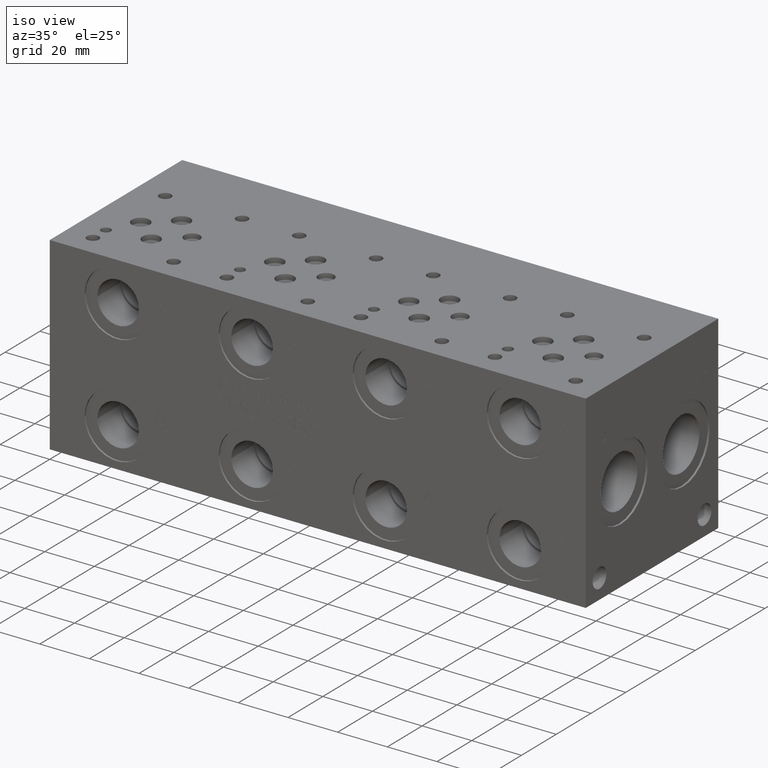
[diagram: clean part render]
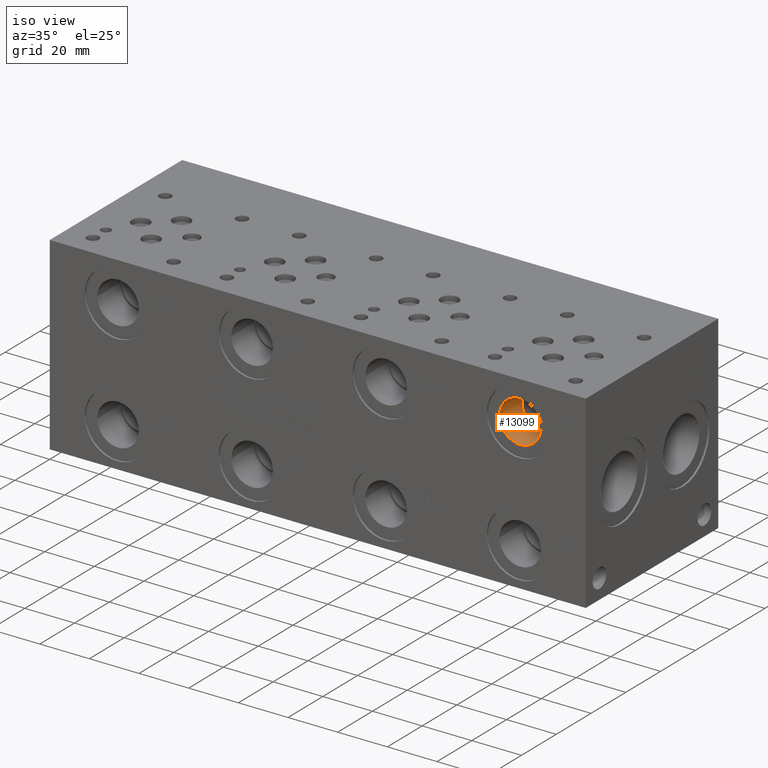
[diagram: same view with one face highlighted and labeled with its STEP entity id]
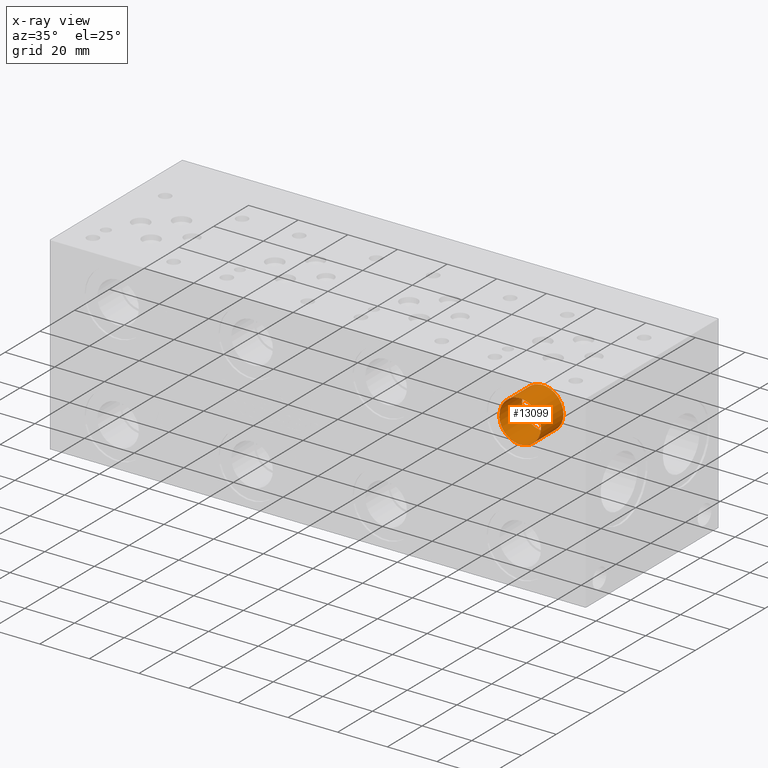
[diagram: x-ray of the same camera — body ghosted, the highlighted face saturated]
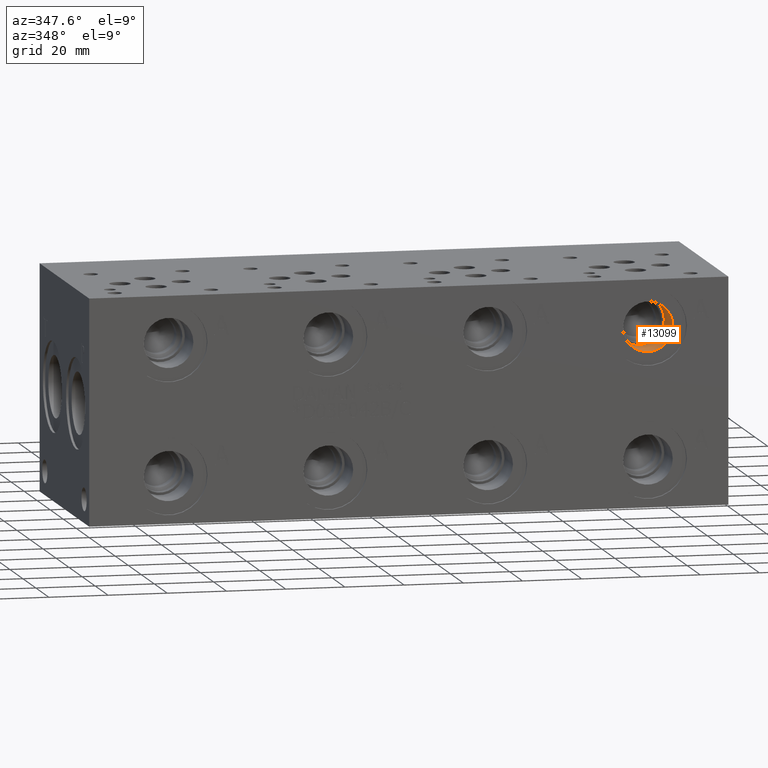
[diagram: same view with one face highlighted and labeled with its STEP entity id]
A machine part, iso view. The second image highlights one B-rep face of the part: STEP entity #13099.
The next image is the same camera in x-ray: the body ghosted, the highlighted face saturated — about 0% of this face is hidden behind the body in this view.
A second angle (auxiliary view) of the same face is appended — the face is thin or edge-on in the first view.
In plain terms, the highlighted cylindrical surface (bore or boss wall) has radius 8.382 mm, axis along (0, 1, 0).
Its self-contained STEP definition (entity closure, byte-faithful):
#71=CYLINDRICAL_SURFACE('',#13853,8.38200000000001);
#325=CIRCLE('',#13852,8.38200000000001);
#326=CIRCLE('',#13854,8.38200000000001);
#1560=FACE_OUTER_BOUND('',#2379,.T.);
#2379=EDGE_LOOP('',(#11129,#11130,#11131,#11132));
#3756=LINE('',#21891,#5038);
#5038=VECTOR('',#16502,8.38200000000001);
#6191=VERTEX_POINT('',#21887);
#6192=VERTEX_POINT('',#21890);
#7876=EDGE_CURVE('',#6191,#6191,#325,.T.);
#7877=EDGE_CURVE('',#6191,#6192,#3756,.T.);
#7878=EDGE_CURVE('',#6192,#6192,#326,.T.);
#11129=ORIENTED_EDGE('',*,*,#7876,.F.);
#11130=ORIENTED_EDGE('',*,*,#7877,.T.);
#11131=ORIENTED_EDGE('',*,*,#7878,.T.);
#11132=ORIENTED_EDGE('',*,*,#7877,.F.);
#13099=ADVANCED_FACE('',(#1560),#71,.F.);
#13852=AXIS2_PLACEMENT_3D('',#21888,#16498,#16499);
#13853=AXIS2_PLACEMENT_3D('',#21889,#16500,#16501);
#13854=AXIS2_PLACEMENT_3D('',#21892,#16503,#16504);
#16498=DIRECTION('center_axis',(0.,1.,0.));
#16499=DIRECTION('ref_axis',(1.,0.,0.));
#16500=DIRECTION('center_axis',(0.,1.,0.));
#16501=DIRECTION('ref_axis',(1.,0.,0.));
#16502=DIRECTION('',(0.,1.,0.));
#16503=DIRECTION('center_axis',(0.,1.,0.));
#16504=DIRECTION('ref_axis',(1.,0.,0.));
#21887=CARTESIAN_POINT('',(180.5178,0.7874,60.325));
#21888=CARTESIAN_POINT('Origin',(188.8998,0.7874,60.325));
#21889=CARTESIAN_POINT('Origin',(188.8998,7.2771,60.325));
#21890=CARTESIAN_POINT('',(180.5178,13.7668,60.325));
#21891=CARTESIAN_POINT('',(180.5178,7.2771,60.325));
#21892=CARTESIAN_POINT('Origin',(188.8998,13.7668,60.325));